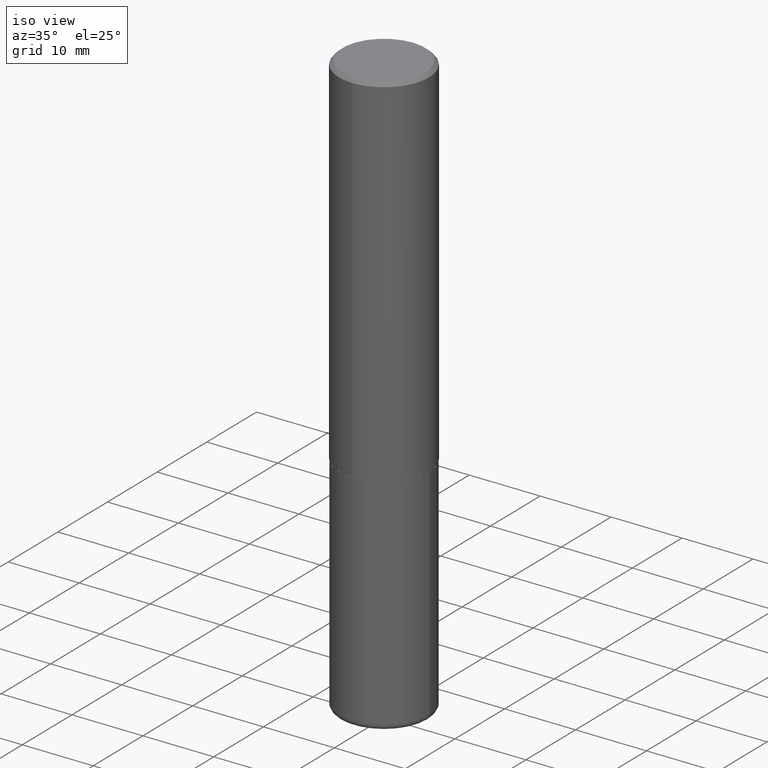
[diagram: clean part render]
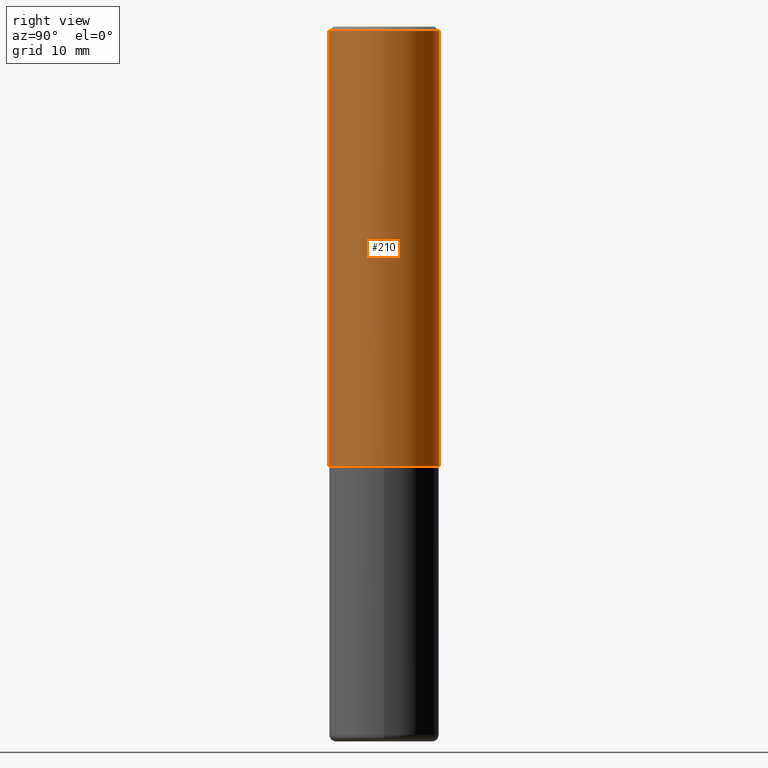
[diagram: tour spotlight — one face highlighted and labeled with its STEP entity id]
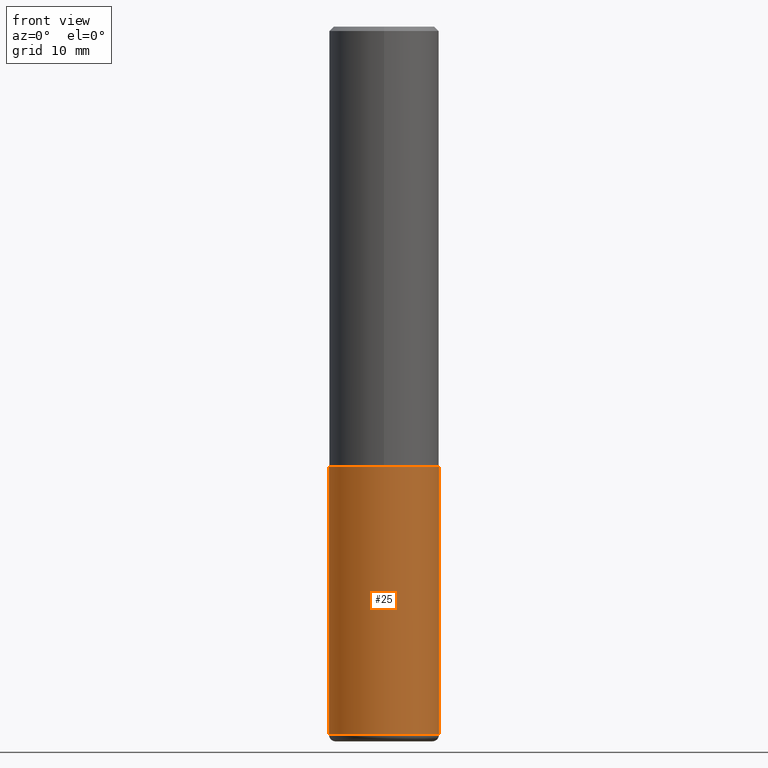
[diagram: tour spotlight — one face highlighted and labeled with its STEP entity id]
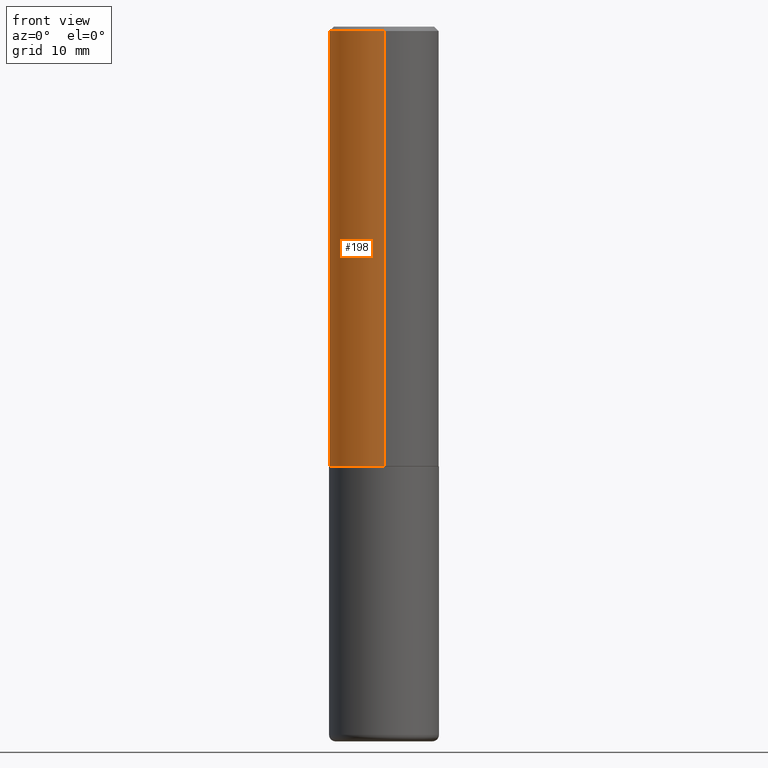
[diagram: tour spotlight — one face highlighted and labeled with its STEP entity id]
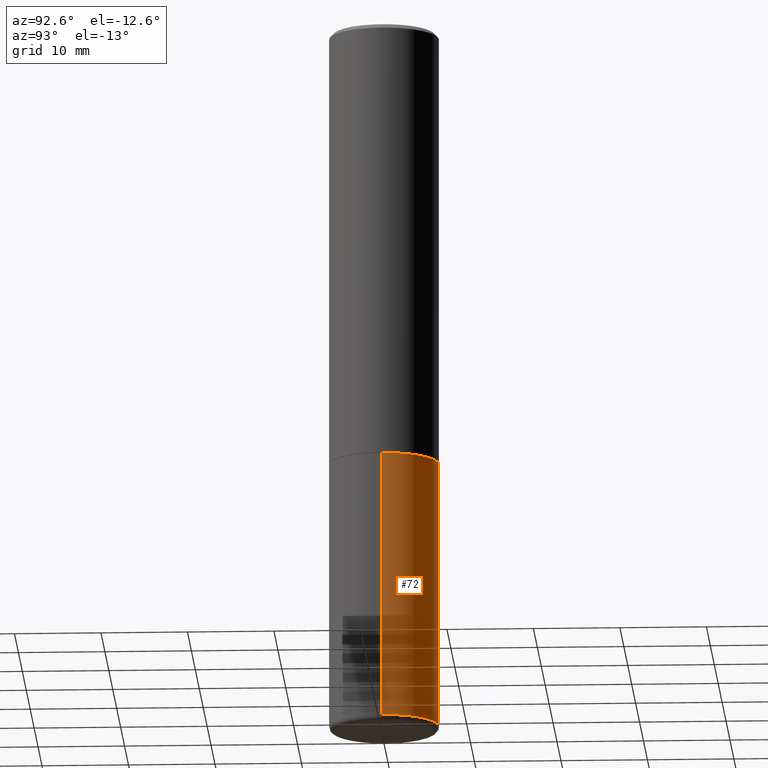
[diagram: tour spotlight — one face highlighted and labeled with its STEP entity id]
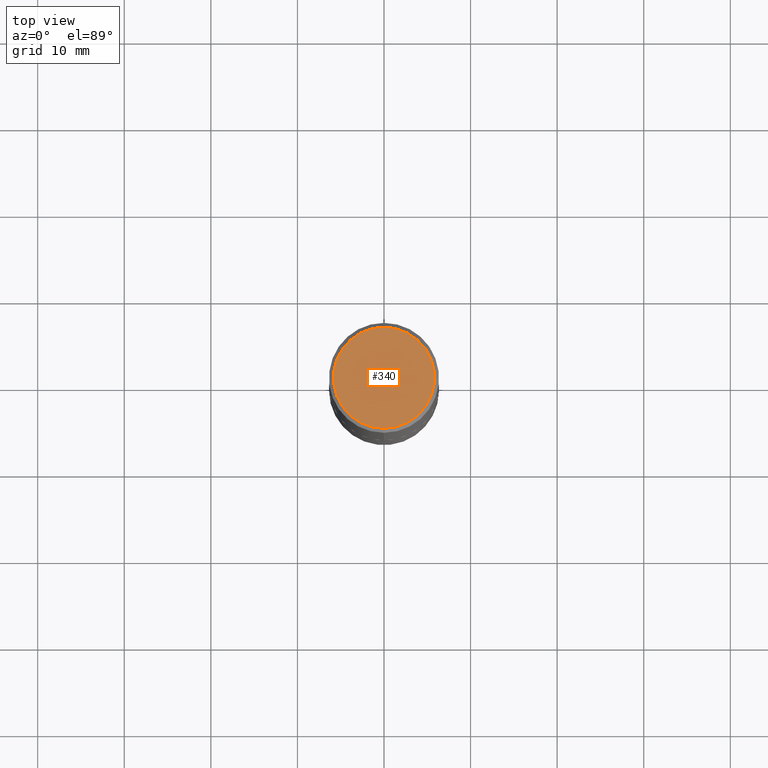
[diagram: tour spotlight — one face highlighted and labeled with its STEP entity id]
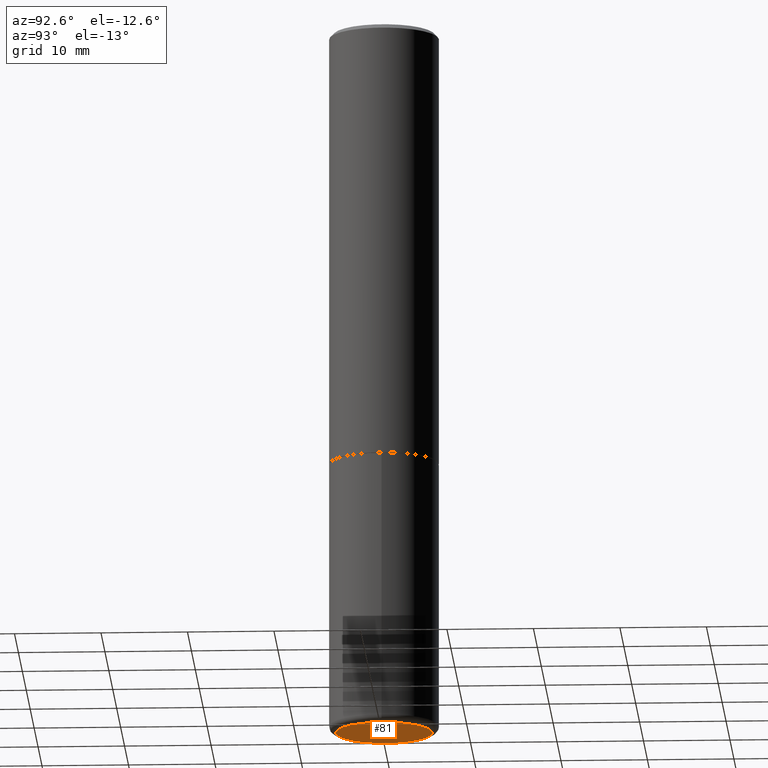
[diagram: tour spotlight — one face highlighted and labeled with its STEP entity id]
A machine part: a face-by-face anatomy tour. The part has 14 B-rep faces; the first image is the clean iso view, then the 6 largest visible faces are spotlighted one at a time (largest first), each with its STEP entity span.

Face 1 — right view, entity #210. In plain terms, the highlighted cylindrical surface (partial cylindrical patch) has radius 6.35 mm, axis along (-0, 0, 1).
Definition (entity closure, byte-faithful):
#8 = LINE ( 'NONE', #41, #177 ) ;
#10 = VERTEX_POINT ( 'NONE', #109 ) ;
#11 = DIRECTION ( 'NONE',  ( -2.443008383024178884E-29, 3.495004804848227221E-15, 1.000000000000000000 ) ) ;
#18 = CARTESIAN_POINT ( 'NONE',  ( 0.000000000000000000, 0.000000000000000000, 0.000000000000000000 ) ) ;
#19 = DIRECTION ( 'NONE',  ( -6.982962677686265133E-15, -1.000000000000000000, 3.278217592397113101E-15 ) ) ;
#22 = FACE_OUTER_BOUND ( 'NONE', #204, .T. ) ;
#30 = DIRECTION ( 'NONE',  ( -6.982962677686265922E-15, -1.000000000000000000, 3.495004804848226432E-15 ) ) ;
#31 = EDGE_CURVE ( 'NONE', #164, #234, #141, .T. ) ;
#32 = LINE ( 'NONE', #281, #284 ) ;
#41 = CARTESIAN_POINT ( 'NONE',  ( 1.776356839400250859E-15, 0.2500000000000001110, -8.737512012120570024E-16 ) ) ;
#49 = ORIENTED_EDGE ( 'NONE', *, *, #406, .T. ) ;
#54 = EDGE_CURVE ( 'NONE', #10, #288, #312, .T. ) ;
#61 = CARTESIAN_POINT ( 'NONE',  ( 1.776356839400276103E-15, 0.2499999999999932276, -1.999000000000000776 ) ) ;
#83 = DIRECTION ( 'NONE',  ( -2.443008383024178604E-29, 3.495004804848226826E-15, 1.000000000000000000 ) ) ;
#84 = EDGE_CURVE ( 'NONE', #10, #164, #32, .T. ) ;
#109 = CARTESIAN_POINT ( 'NONE',  ( -1.745740669421519149E-15, -0.2500000000000072164, -1.998999999999999000 ) ) ;
#131 = CARTESIAN_POINT ( 'NONE',  ( -1.715124499442882299E-15, -0.2500000000000000555, -0.01999999999999917122 ) ) ;
#141 = CIRCLE ( 'NONE', #382, 0.2500000000000000000 ) ;
#155 = DIRECTION ( 'NONE',  ( -2.443008383024178884E-29, 3.495004804848227221E-15, 1.000000000000000000 ) ) ;
#164 = VERTEX_POINT ( 'NONE', #131 ) ;
#177 = VECTOR ( 'NONE', #11, 39.37007874015748143 ) ;
#179 = CARTESIAN_POINT ( 'NONE',  ( 4.883573757665332873E-29, -6.986514604891604953E-15, -1.998999999999999888 ) ) ;
#204 = EDGE_LOOP ( 'NONE', ( #297, #49, #326, #366 ) ) ;
#210 = ADVANCED_FACE ( 'NONE', ( #22 ), #298, .T. ) ;
#234 = VERTEX_POINT ( 'NONE', #345 ) ;
#238 = DIRECTION ( 'NONE',  ( -2.443008383024178604E-29, 3.495004804848226826E-15, 1.000000000000000000 ) ) ;
#260 = AXIS2_PLACEMENT_3D ( 'NONE', #179, #83, #19 ) ;
#266 = DIRECTION ( 'NONE',  ( -6.982962677686265922E-15, -1.000000000000000000, 3.500180241882337261E-15 ) ) ;
#281 = CARTESIAN_POINT ( 'NONE',  ( -1.745740669421567269E-15, -0.2500000000000001110, 8.737512012120570024E-16 ) ) ;
#284 = VECTOR ( 'NONE', #155, 39.37007874015748143 ) ;
#288 = VERTEX_POINT ( 'NONE', #61 ) ;
#296 = CARTESIAN_POINT ( 'NONE',  ( 4.886016766048368698E-31, -6.990009609696470120E-17, -0.02000000000000004552 ) ) ;
#297 = ORIENTED_EDGE ( 'NONE', *, *, #54, .T. ) ;
#298 = CYLINDRICAL_SURFACE ( 'NONE', #383, 0.2500000000000001110 ) ;
#312 = CIRCLE ( 'NONE', #260, 0.2500000000000002220 ) ;
#326 = ORIENTED_EDGE ( 'NONE', *, *, #31, .F. ) ;
#345 = CARTESIAN_POINT ( 'NONE',  ( 1.745740669421566875E-15, 0.2499999999999999167, -0.02000000000000092329 ) ) ;
#366 = ORIENTED_EDGE ( 'NONE', *, *, #84, .F. ) ;
#379 = DIRECTION ( 'NONE',  ( -2.443008383024178604E-29, 3.495004804848226826E-15, 1.000000000000000000 ) ) ;
#382 = AXIS2_PLACEMENT_3D ( 'NONE', #296, #238, #266 ) ;
#383 = AXIS2_PLACEMENT_3D ( 'NONE', #18, #379, #30 ) ;
#406 = EDGE_CURVE ( 'NONE', #288, #234, #8, .T. ) ;

Face 2 — front view, entity #25. In plain terms, the highlighted cylindrical surface (partial cylindrical patch) has radius 6.35 mm, axis along (-0, 0, 1).
Definition (entity closure, byte-faithful):
#7 = ORIENTED_EDGE ( 'NONE', *, *, #62, .F. ) ;
#25 = ADVANCED_FACE ( 'NONE', ( #362 ), #45, .T. ) ;
#39 = CARTESIAN_POINT ( 'NONE',  ( 0.2500000000000000000, -8.728703347107857054E-15, -2.000000000000000000 ) ) ;
#44 = ORIENTED_EDGE ( 'NONE', *, *, #254, .T. ) ;
#45 = CYLINDRICAL_SURFACE ( 'NONE', #148, 0.2500000000000000000 ) ;
#56 = DIRECTION ( 'NONE',  ( -2.445468806185136877E-29, 3.491481338843145188E-15, 1.000000000000000000 ) ) ;
#59 = DIRECTION ( 'NONE',  ( -2.445468806185136597E-29, 3.491481338843145583E-15, 1.000000000000000000 ) ) ;
#62 = EDGE_CURVE ( 'NONE', #283, #110, #300, .T. ) ;
#88 = CIRCLE ( 'NONE', #357, 0.2500000000000000000 ) ;
#98 = CARTESIAN_POINT ( 'NONE',  ( -0.2500000000000000000, -7.336409454980359463E-15, -2.000000000000000000 ) ) ;
#110 = VERTEX_POINT ( 'NONE', #98 ) ;
#128 = AXIS2_PLACEMENT_3D ( 'NONE', #146, #190, #413 ) ;
#132 = VERTEX_POINT ( 'NONE', #39 ) ;
#146 = CARTESIAN_POINT ( 'NONE',  ( 7.874409555916140425E-29, -1.124256991107492948E-14, -3.220000000000000195 ) ) ;
#148 = AXIS2_PLACEMENT_3D ( 'NONE', #170, #291, #205 ) ;
#169 = ORIENTED_EDGE ( 'NONE', *, *, #391, .T. ) ;
#170 = CARTESIAN_POINT ( 'NONE',  ( 0.000000000000000000, 0.000000000000000000, 0.000000000000000000 ) ) ;
#181 = CARTESIAN_POINT ( 'NONE',  ( 4.890937612370273194E-29, -6.982962677686291165E-15, -2.000000000000000000 ) ) ;
#187 = CARTESIAN_POINT ( 'NONE',  ( 0.2499999999999998612, -1.298831058049649616E-14, -3.220000000000000195 ) ) ;
#190 = DIRECTION ( 'NONE',  ( -2.445468806185136597E-29, 3.491481338843145583E-15, 1.000000000000000000 ) ) ;
#194 = VECTOR ( 'NONE', #402, 39.37007874015748143 ) ;
#201 = ORIENTED_EDGE ( 'NONE', *, *, #251, .F. ) ;
#205 = DIRECTION ( 'NONE',  ( 1.000000000000000000, -6.982962677686266711E-15, 4.876176775795935793E-29 ) ) ;
#208 = EDGE_LOOP ( 'NONE', ( #7, #44, #169, #201 ) ) ;
#220 = LINE ( 'NONE', #347, #261 ) ;
#235 = CIRCLE ( 'NONE', #128, 0.2500000000000000000 ) ;
#251 = EDGE_CURVE ( 'NONE', #110, #132, #88, .T. ) ;
#254 = EDGE_CURVE ( 'NONE', #283, #263, #235, .T. ) ;
#261 = VECTOR ( 'NONE', #56, 39.37007874015748143 ) ;
#263 = VERTEX_POINT ( 'NONE', #187 ) ;
#273 = CARTESIAN_POINT ( 'NONE',  ( -0.2500000000000000000, 1.776356839400250465E-15, -1.229733772563726445E-29 ) ) ;
#283 = VERTEX_POINT ( 'NONE', #387 ) ;
#291 = DIRECTION ( 'NONE',  ( -2.445468806185136597E-29, 3.491481338843145583E-15, 1.000000000000000000 ) ) ;
#300 = LINE ( 'NONE', #273, #194 ) ;
#308 = DIRECTION ( 'NONE',  ( 1.000000000000000000, -6.982962677686266711E-15, 0.000000000000000000 ) ) ;
#347 = CARTESIAN_POINT ( 'NONE',  ( 0.2500000000000000000, -1.745740669421566678E-15, 1.219044193948983948E-29 ) ) ;
#357 = AXIS2_PLACEMENT_3D ( 'NONE', #181, #59, #308 ) ;
#362 = FACE_OUTER_BOUND ( 'NONE', #208, .T. ) ;
#387 = CARTESIAN_POINT ( 'NONE',  ( -0.2499999999999998612, -9.466213071674679013E-15, -3.220000000000000195 ) ) ;
#391 = EDGE_CURVE ( 'NONE', #263, #132, #220, .T. ) ;
#402 = DIRECTION ( 'NONE',  ( -2.445468806185136877E-29, 3.491481338843145188E-15, 1.000000000000000000 ) ) ;
#413 = DIRECTION ( 'NONE',  ( 1.000000000000000000, -6.982962677686270655E-15, 0.000000000000000000 ) ) ;

Face 3 — front view, entity #198. In plain terms, the highlighted cylindrical surface (partial cylindrical patch) has radius 6.35 mm, axis along (-0, 0, 1).
Definition (entity closure, byte-faithful):
#8 = LINE ( 'NONE', #41, #177 ) ;
#10 = VERTEX_POINT ( 'NONE', #109 ) ;
#11 = DIRECTION ( 'NONE',  ( -2.443008383024178884E-29, 3.495004804848227221E-15, 1.000000000000000000 ) ) ;
#32 = LINE ( 'NONE', #281, #284 ) ;
#41 = CARTESIAN_POINT ( 'NONE',  ( 1.776356839400250859E-15, 0.2500000000000001110, -8.737512012120570024E-16 ) ) ;
#55 = CARTESIAN_POINT ( 'NONE',  ( 4.883573757665332873E-29, -6.986514604891604953E-15, -1.998999999999999888 ) ) ;
#61 = CARTESIAN_POINT ( 'NONE',  ( 1.776356839400276103E-15, 0.2499999999999932276, -1.999000000000000776 ) ) ;
#84 = EDGE_CURVE ( 'NONE', #10, #164, #32, .T. ) ;
#109 = CARTESIAN_POINT ( 'NONE',  ( -1.745740669421519149E-15, -0.2500000000000072164, -1.998999999999999000 ) ) ;
#122 = ORIENTED_EDGE ( 'NONE', *, *, #370, .T. ) ;
#124 = CIRCLE ( 'NONE', #294, 0.2500000000000000000 ) ;
#130 = EDGE_CURVE ( 'NONE', #234, #164, #124, .T. ) ;
#131 = CARTESIAN_POINT ( 'NONE',  ( -1.715124499442882299E-15, -0.2500000000000000555, -0.01999999999999917122 ) ) ;
#155 = DIRECTION ( 'NONE',  ( -2.443008383024178884E-29, 3.495004804848227221E-15, 1.000000000000000000 ) ) ;
#160 = AXIS2_PLACEMENT_3D ( 'NONE', #243, #377, #249 ) ;
#164 = VERTEX_POINT ( 'NONE', #131 ) ;
#165 = DIRECTION ( 'NONE',  ( -6.982962677686265922E-15, -1.000000000000000000, 3.500180241882337261E-15 ) ) ;
#177 = VECTOR ( 'NONE', #11, 39.37007874015748143 ) ;
#180 = FACE_OUTER_BOUND ( 'NONE', #230, .T. ) ;
#198 = ADVANCED_FACE ( 'NONE', ( #180 ), #306, .T. ) ;
#230 = EDGE_LOOP ( 'NONE', ( #388, #122, #332, #330 ) ) ;
#234 = VERTEX_POINT ( 'NONE', #345 ) ;
#243 = CARTESIAN_POINT ( 'NONE',  ( 0.000000000000000000, 0.000000000000000000, 0.000000000000000000 ) ) ;
#249 = DIRECTION ( 'NONE',  ( -6.982962677686265922E-15, -1.000000000000000000, 3.495004804848226432E-15 ) ) ;
#272 = AXIS2_PLACEMENT_3D ( 'NONE', #55, #274, #411 ) ;
#274 = DIRECTION ( 'NONE',  ( -2.443008383024178604E-29, 3.495004804848226826E-15, 1.000000000000000000 ) ) ;
#281 = CARTESIAN_POINT ( 'NONE',  ( -1.745740669421567269E-15, -0.2500000000000001110, 8.737512012120570024E-16 ) ) ;
#284 = VECTOR ( 'NONE', #155, 39.37007874015748143 ) ;
#288 = VERTEX_POINT ( 'NONE', #61 ) ;
#294 = AXIS2_PLACEMENT_3D ( 'NONE', #322, #352, #165 ) ;
#304 = CIRCLE ( 'NONE', #272, 0.2500000000000002220 ) ;
#306 = CYLINDRICAL_SURFACE ( 'NONE', #160, 0.2500000000000001110 ) ;
#322 = CARTESIAN_POINT ( 'NONE',  ( 4.886016766048368698E-31, -6.990009609696470120E-17, -0.02000000000000004552 ) ) ;
#330 = ORIENTED_EDGE ( 'NONE', *, *, #130, .F. ) ;
#332 = ORIENTED_EDGE ( 'NONE', *, *, #84, .T. ) ;
#345 = CARTESIAN_POINT ( 'NONE',  ( 1.745740669421566875E-15, 0.2499999999999999167, -0.02000000000000092329 ) ) ;
#352 = DIRECTION ( 'NONE',  ( -2.443008383024178604E-29, 3.495004804848226826E-15, 1.000000000000000000 ) ) ;
#370 = EDGE_CURVE ( 'NONE', #288, #10, #304, .T. ) ;
#377 = DIRECTION ( 'NONE',  ( -2.443008383024178604E-29, 3.495004804848226826E-15, 1.000000000000000000 ) ) ;
#388 = ORIENTED_EDGE ( 'NONE', *, *, #406, .F. ) ;
#406 = EDGE_CURVE ( 'NONE', #288, #234, #8, .T. ) ;
#411 = DIRECTION ( 'NONE',  ( -6.982962677686265133E-15, -1.000000000000000000, 3.278217592397113101E-15 ) ) ;

Face 4 — auxiliary view, entity #72. In plain terms, the highlighted cylindrical surface (partial cylindrical patch) has radius 6.35 mm, axis along (-0, 0, 1).
Definition (entity closure, byte-faithful):
#15 = CIRCLE ( 'NONE', #314, 0.2500000000000000000 ) ;
#34 = DIRECTION ( 'NONE',  ( 1.000000000000000000, -6.982962677686266711E-15, 0.000000000000000000 ) ) ;
#39 = CARTESIAN_POINT ( 'NONE',  ( 0.2500000000000000000, -8.728703347107857054E-15, -2.000000000000000000 ) ) ;
#53 = DIRECTION ( 'NONE',  ( 1.000000000000000000, -6.982962677686266711E-15, 4.876176775795935793E-29 ) ) ;
#56 = DIRECTION ( 'NONE',  ( -2.445468806185136877E-29, 3.491481338843145188E-15, 1.000000000000000000 ) ) ;
#62 = EDGE_CURVE ( 'NONE', #283, #110, #300, .T. ) ;
#72 = ADVANCED_FACE ( 'NONE', ( #236 ), #211, .T. ) ;
#98 = CARTESIAN_POINT ( 'NONE',  ( -0.2500000000000000000, -7.336409454980359463E-15, -2.000000000000000000 ) ) ;
#110 = VERTEX_POINT ( 'NONE', #98 ) ;
#115 = DIRECTION ( 'NONE',  ( -2.445468806185136597E-29, 3.491481338843145583E-15, 1.000000000000000000 ) ) ;
#132 = VERTEX_POINT ( 'NONE', #39 ) ;
#133 = ORIENTED_EDGE ( 'NONE', *, *, #62, .T. ) ;
#150 = AXIS2_PLACEMENT_3D ( 'NONE', #193, #325, #163 ) ;
#163 = DIRECTION ( 'NONE',  ( 1.000000000000000000, -6.982962677686270655E-15, 0.000000000000000000 ) ) ;
#186 = AXIS2_PLACEMENT_3D ( 'NONE', #375, #115, #53 ) ;
#187 = CARTESIAN_POINT ( 'NONE',  ( 0.2499999999999998612, -1.298831058049649616E-14, -3.220000000000000195 ) ) ;
#193 = CARTESIAN_POINT ( 'NONE',  ( 7.874409555916140425E-29, -1.124256991107492948E-14, -3.220000000000000195 ) ) ;
#194 = VECTOR ( 'NONE', #402, 39.37007874015748143 ) ;
#207 = CIRCLE ( 'NONE', #150, 0.2500000000000000000 ) ;
#211 = CYLINDRICAL_SURFACE ( 'NONE', #186, 0.2500000000000000000 ) ;
#220 = LINE ( 'NONE', #347, #261 ) ;
#233 = ORIENTED_EDGE ( 'NONE', *, *, #391, .F. ) ;
#236 = FACE_OUTER_BOUND ( 'NONE', #285, .T. ) ;
#242 = DIRECTION ( 'NONE',  ( -2.445468806185136597E-29, 3.491481338843145583E-15, 1.000000000000000000 ) ) ;
#261 = VECTOR ( 'NONE', #56, 39.37007874015748143 ) ;
#263 = VERTEX_POINT ( 'NONE', #187 ) ;
#270 = CARTESIAN_POINT ( 'NONE',  ( 4.890937612370273194E-29, -6.982962677686291165E-15, -2.000000000000000000 ) ) ;
#273 = CARTESIAN_POINT ( 'NONE',  ( -0.2500000000000000000, 1.776356839400250465E-15, -1.229733772563726445E-29 ) ) ;
#283 = VERTEX_POINT ( 'NONE', #387 ) ;
#285 = EDGE_LOOP ( 'NONE', ( #335, #133, #287, #233 ) ) ;
#287 = ORIENTED_EDGE ( 'NONE', *, *, #329, .F. ) ;
#300 = LINE ( 'NONE', #273, #194 ) ;
#314 = AXIS2_PLACEMENT_3D ( 'NONE', #270, #242, #34 ) ;
#325 = DIRECTION ( 'NONE',  ( -2.445468806185136597E-29, 3.491481338843145583E-15, 1.000000000000000000 ) ) ;
#329 = EDGE_CURVE ( 'NONE', #132, #110, #15, .T. ) ;
#335 = ORIENTED_EDGE ( 'NONE', *, *, #412, .T. ) ;
#347 = CARTESIAN_POINT ( 'NONE',  ( 0.2500000000000000000, -1.745740669421566678E-15, 1.219044193948983948E-29 ) ) ;
#375 = CARTESIAN_POINT ( 'NONE',  ( 0.000000000000000000, 0.000000000000000000, 0.000000000000000000 ) ) ;
#387 = CARTESIAN_POINT ( 'NONE',  ( -0.2499999999999998612, -9.466213071674679013E-15, -3.220000000000000195 ) ) ;
#391 = EDGE_CURVE ( 'NONE', #263, #132, #220, .T. ) ;
#402 = DIRECTION ( 'NONE',  ( -2.445468806185136877E-29, 3.491481338843145188E-15, 1.000000000000000000 ) ) ;
#412 = EDGE_CURVE ( 'NONE', #263, #283, #207, .T. ) ;

Face 5 — top view, entity #340. In plain terms, the highlighted planar face has unit normal (0, -0, -1).
Definition (entity closure, byte-faithful):
#12 = DIRECTION ( 'NONE',  ( -6.982962677686266711E-15, -1.000000000000000000, 3.495004804848227221E-15 ) ) ;
#48 = ORIENTED_EDGE ( 'NONE', *, *, #183, .T. ) ;
#65 = AXIS2_PLACEMENT_3D ( 'NONE', #246, #191, #385 ) ;
#90 = CARTESIAN_POINT ( 'NONE',  ( -1.166879368671202230E-45, 1.669355303290318093E-31, 4.776403457227324398E-17 ) ) ;
#103 = CIRCLE ( 'NONE', #324, 0.2299999999999999267 ) ;
#106 = DIRECTION ( 'NONE',  ( -2.443008383024178604E-29, 3.495004804848226826E-15, 1.000000000000000000 ) ) ;
#117 = AXIS2_PLACEMENT_3D ( 'NONE', #257, #106, #12 ) ;
#140 = EDGE_LOOP ( 'NONE', ( #229, #48 ) ) ;
#157 = CARTESIAN_POINT ( 'NONE',  ( -1.646519519465166968E-15, -0.2299999999999999267, 8.516151396873652617E-16 ) ) ;
#183 = EDGE_CURVE ( 'NONE', #289, #361, #416, .T. ) ;
#191 = DIRECTION ( 'NONE',  ( 2.443008383024178043E-29, -3.495004804848227221E-15, -1.000000000000000000 ) ) ;
#223 = DIRECTION ( 'NONE',  ( -2.443008383024178604E-29, 3.495004804848226826E-15, 1.000000000000000000 ) ) ;
#226 = PLANE ( 'NONE',  #65 ) ;
#229 = ORIENTED_EDGE ( 'NONE', *, *, #237, .T. ) ;
#237 = EDGE_CURVE ( 'NONE', #361, #289, #103, .T. ) ;
#246 = CARTESIAN_POINT ( 'NONE',  ( 1.606081415867840870E-15, 0.2299999999999999267, -7.799690878289553895E-16 ) ) ;
#257 = CARTESIAN_POINT ( 'NONE',  ( -1.166879368671202230E-45, 1.669355303290318093E-31, 4.776403457227324398E-17 ) ) ;
#289 = VERTEX_POINT ( 'NONE', #157 ) ;
#324 = AXIS2_PLACEMENT_3D ( 'NONE', #90, #223, #351 ) ;
#340 = ADVANCED_FACE ( 'NONE', ( #405 ), #226, .F. ) ;
#351 = DIRECTION ( 'NONE',  ( -6.982962677686266711E-15, -1.000000000000000000, 3.495004804848227221E-15 ) ) ;
#361 = VERTEX_POINT ( 'NONE', #376 ) ;
#376 = CARTESIAN_POINT ( 'NONE',  ( 1.675911042644703774E-15, 0.2299999999999999267, -7.560870705428187983E-16 ) ) ;
#385 = DIRECTION ( 'NONE',  ( 6.982962677686265922E-15, 1.000000000000000000, -3.495004804848227221E-15 ) ) ;
#405 = FACE_OUTER_BOUND ( 'NONE', #140, .T. ) ;
#416 = CIRCLE ( 'NONE', #117, 0.2299999999999999267 ) ;

Face 6 — auxiliary view, entity #81. In plain terms, the highlighted planar face has unit normal (0, -0, -1).
Definition (entity closure, byte-faithful):
#14 = ORIENTED_EDGE ( 'NONE', *, *, #136, .F. ) ;
#26 = CARTESIAN_POINT ( 'NONE',  ( 1.358398051899500366E-28, -3.275945279050347919E-15, -3.249999999999999556 ) ) ;
#57 = AXIS2_PLACEMENT_3D ( 'NONE', #26, #409, #276 ) ;
#70 = EDGE_LOOP ( 'NONE', ( #393, #14 ) ) ;
#73 = AXIS2_PLACEMENT_3D ( 'NONE', #158, #315, #418 ) ;
#78 = VERTEX_POINT ( 'NONE', #212 ) ;
#81 = ADVANCED_FACE ( 'NONE', ( #341 ), #184, .T. ) ;
#104 = EDGE_CURVE ( 'NONE', #78, #200, #302, .T. ) ;
#116 = CIRCLE ( 'NONE', #389, 0.2199999999999999734 ) ;
#136 = EDGE_CURVE ( 'NONE', #200, #78, #116, .T. ) ;
#158 = CARTESIAN_POINT ( 'NONE',  ( 7.947773620101692818E-29, -1.134731435124022127E-14, -3.249999999999999556 ) ) ;
#178 = DIRECTION ( 'NONE',  ( 1.000000000000000000, -6.982962677686263555E-15, 0.000000000000000000 ) ) ;
#184 = PLANE ( 'NONE',  #57 ) ;
#200 = VERTEX_POINT ( 'NONE', #358 ) ;
#212 = CARTESIAN_POINT ( 'NONE',  ( 0.2199999999999999734, -1.288356614033119963E-14, -3.249999999999999556 ) ) ;
#250 = CARTESIAN_POINT ( 'NONE',  ( 7.947773620101692818E-29, -1.134731435124022127E-14, -3.249999999999999556 ) ) ;
#276 = DIRECTION ( 'NONE',  ( -1.000000000000000000, 6.982962677686265922E-15, -4.876176775795935793E-29 ) ) ;
#282 = DIRECTION ( 'NONE',  ( -2.445468806185136597E-29, 3.491481338843145583E-15, 1.000000000000000000 ) ) ;
#302 = CIRCLE ( 'NONE', #73, 0.2199999999999999734 ) ;
#315 = DIRECTION ( 'NONE',  ( -2.445468806185136597E-29, 3.491481338843145583E-15, 1.000000000000000000 ) ) ;
#341 = FACE_OUTER_BOUND ( 'NONE', #70, .T. ) ;
#358 = CARTESIAN_POINT ( 'NONE',  ( -0.2199999999999999734, -9.625166702121341610E-15, -3.249999999999999556 ) ) ;
#389 = AXIS2_PLACEMENT_3D ( 'NONE', #250, #282, #178 ) ;
#393 = ORIENTED_EDGE ( 'NONE', *, *, #104, .F. ) ;
#409 = DIRECTION ( 'NONE',  ( 2.438088387897960049E-29, -3.491481338843145188E-15, -1.000000000000000000 ) ) ;
#418 = DIRECTION ( 'NONE',  ( 1.000000000000000000, -6.982962677686263555E-15, 0.000000000000000000 ) ) ;